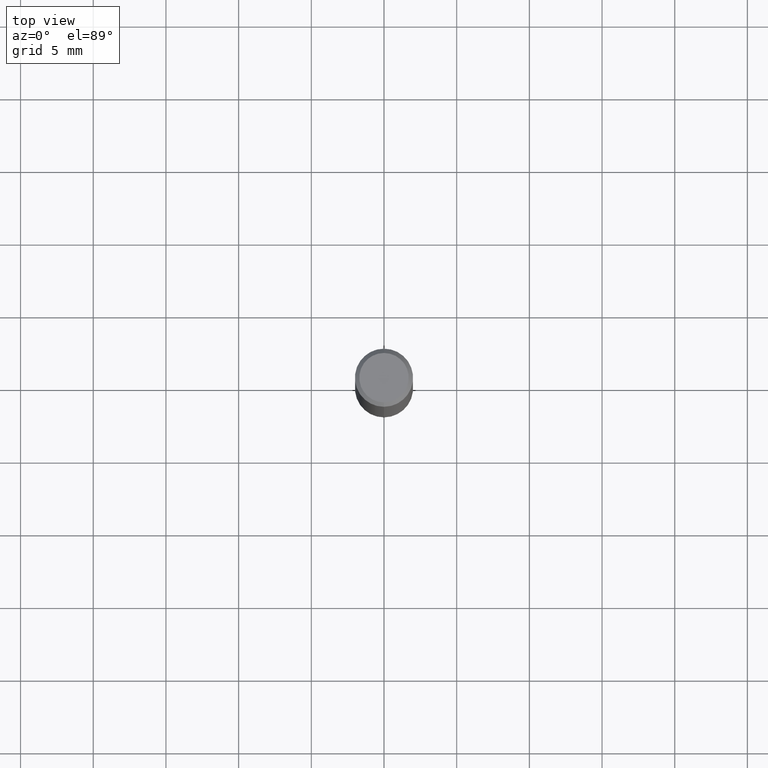
[diagram: clean part render]
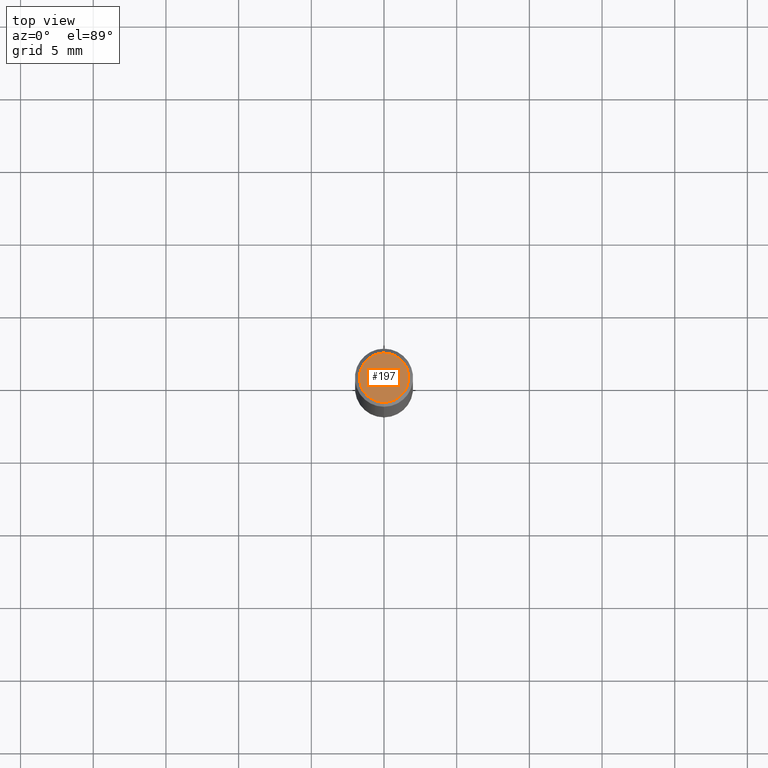
[diagram: same view with one face highlighted and labeled with its STEP entity id]
A machine part, top view. The second image highlights one B-rep face of the part: STEP entity #197.
In plain terms, the highlighted planar face has unit normal (-0, 0, 1).
Its self-contained STEP definition (entity closure, byte-faithful):
#145=VERTEX_POINT('',#380);
#197=ADVANCED_FACE('',(#440),#441,.T.);
#281=EDGE_CURVE('',#329,#145,#534,.T.);
#329=VERTEX_POINT('',#587);
#343=EDGE_CURVE('',#145,#329,#605,.T.);
#380=CARTESIAN_POINT('',(2.08183080149804E-016,-1.7,0.00999999999999801));
#440=FACE_OUTER_BOUND('',#713,.T.);
#441=PLANE('',#714);
#534=CIRCLE('',#836,1.7);
#587=CARTESIAN_POINT('',(0.0,1.7,0.00999999999999801));
#605=CIRCLE('',#924,1.7);
#713=EDGE_LOOP('',(#1030,#1031));
#714=AXIS2_PLACEMENT_3D('',#1032,#1033,#1034);
#836=AXIS2_PLACEMENT_3D('',#1147,#1148,#1149);
#924=AXIS2_PLACEMENT_3D('',#1241,#1242,#1243);
#1030=ORIENTED_EDGE('',*,*,#281,.F.);
#1031=ORIENTED_EDGE('',*,*,#343,.F.);
#1032=CARTESIAN_POINT('',(0.0,0.85,0.00999999999999801));
#1033=DIRECTION('',(-0.0,0.0,1.0));
#1034=DIRECTION('',(0.0,-1.0,0.0));
#1147=CARTESIAN_POINT('',(0.0,0.0,0.00999999999999801));
#1148=DIRECTION('',(0.0,0.0,-1.0));
#1149=DIRECTION('',(0.0,1.0,0.0));
#1241=CARTESIAN_POINT('',(0.0,0.0,0.00999999999999801));
#1242=DIRECTION('',(0.0,0.0,-1.0));
#1243=DIRECTION('',(0.0,1.0,0.0));